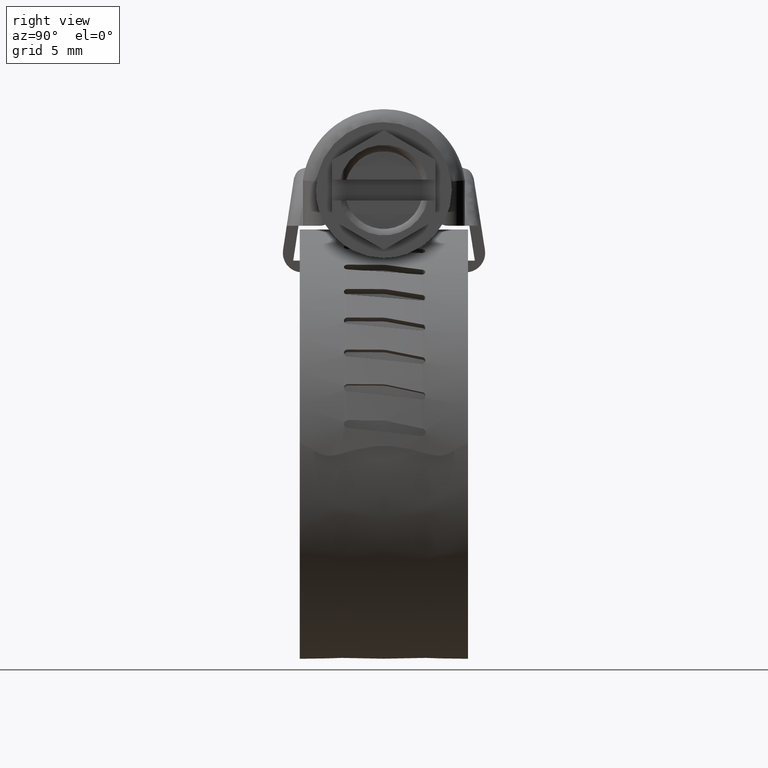
[diagram: clean part render]
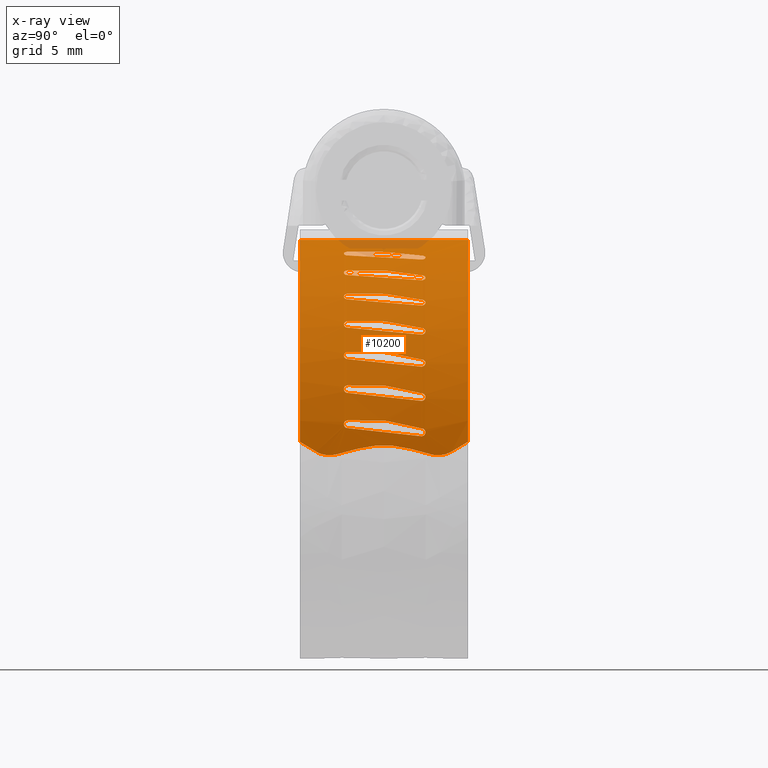
[diagram: x-ray — body ghosted, one internal face saturated and labeled with its STEP entity id]
A machine part, right view, then the same camera in x-ray: the body is ghosted and one INTERNAL B-rep face — a face not visible from any outside direction — is saturated and labeled: STEP entity #10200.
In plain terms, the highlighted face is a freeform B-spline surface patch.
Its self-contained STEP definition (entity closure, byte-faithful):
#7591=CARTESIAN_POINT('',(7.468622013802951,-2.785585000000110,11.060164774460340));
#7592=VERTEX_POINT('',#7591);
#7624=CARTESIAN_POINT('',(8.001785777301370,-2.788650713555960,10.779532431834159));
#7625=VERTEX_POINT('',#7624);
#7631=CARTESIAN_POINT('',(7.735192794443405,-3.087113216014382,10.922941881363000));
#7632=VERTEX_POINT('',#7631);
#7633=CARTESIAN_POINT('',(7.735192794443405,-3.087113216014382,10.922941881363000));
#7634=CARTESIAN_POINT('',(7.774353270318434,-3.087396460004172,10.902330240903360));
#7635=CARTESIAN_POINT('',(7.848236613843380,-3.068984449170313,10.863247654093950));
#7636=CARTESIAN_POINT('',(7.937430647465575,-2.995067784009424,10.815534105407840));
#7637=CARTESIAN_POINT('',(7.990072503995274,-2.896662536323901,10.786810047244920));
#7638=CARTESIAN_POINT('',(8.001668197023564,-2.823057337449750,10.779948423563271));
#7639=CARTESIAN_POINT('',(8.001785777301370,-2.788650713555960,10.779532431834159));
#7640=B_SPLINE_CURVE_WITH_KNOTS('',3,(#7633,#7634,#7635,#7636,#7637,#7638,#7639),.UNSPECIFIED.,.F.,.U.,(4,1,1,1,4),(0.000000074459828,0.132734567175214,0.250719301594225,0.368706799835419,0.471944539498919),.UNSPECIFIED.);
#7641=EDGE_CURVE('',#7632,#7625,#7640,.T.);
#7643=CARTESIAN_POINT('',(7.468622013802951,-2.785585000000110,11.060164774460340));
#7644=CARTESIAN_POINT('',(7.468721886820338,-2.820002962885665,11.060466412822210));
#7645=CARTESIAN_POINT('',(7.480286135821372,-2.893767680608994,11.055138002861280));
#7646=CARTESIAN_POINT('',(7.532909484056900,-2.992798116787530,11.028455610342039));
#7647=CARTESIAN_POINT('',(7.622114220473179,-3.067736762438631,10.982268393178369));
#7648=CARTESIAN_POINT('',(7.696019466352696,-3.086968262830792,10.943561701798050));
#7649=CARTESIAN_POINT('',(7.735192794443405,-3.087113216014382,10.922941881363000));
#7650=B_SPLINE_CURVE_WITH_KNOTS('',3,(#7643,#7644,#7645,#7646,#7647,#7648,#7649),.UNSPECIFIED.,.F.,.U.,(4,1,1,1,4),(0.000000063546443,0.103271005063138,0.221296450684939,0.339319128089686,0.472096309317914),.UNSPECIFIED.);
#7651=EDGE_CURVE('',#7592,#7632,#7650,.T.);
#7661=CARTESIAN_POINT('',(7.480985868132730,-0.091803432220742,11.053934269604540));
#7662=VERTEX_POINT('',#7661);
#7676=CARTESIAN_POINT('',(7.480985868132730,-0.091803432220742,11.053934269604540));
#7677=CARTESIAN_POINT('',(7.468622013802951,-2.785585000000110,11.060164774460340));
#7678=QUASI_UNIFORM_CURVE('',1,(#7676,#7677),.UNSPECIFIED.,.F.,.U.);
#7679=EDGE_CURVE('',#7662,#7592,#7678,.T.);
#7698=CARTESIAN_POINT('',(7.511282089986549,0.217042999999876,11.038612427081800));
#7699=VERTEX_POINT('',#7698);
#7715=CARTESIAN_POINT('',(7.511282089986549,0.217042999999876,11.038612427081800));
#7716=CARTESIAN_POINT('',(7.491606822836358,0.115654460444534,11.048570904177540));
#7717=CARTESIAN_POINT('',(7.481436650518223,0.011953908167259,11.053714308585100));
#7718=CARTESIAN_POINT('',(7.480985868132730,-0.091803432220742,11.053934269604540));
#7719=B_SPLINE_CURVE_WITH_KNOTS('',3,(#7715,#7716,#7717,#7718),.UNSPECIFIED.,.F.,.U.,(4,4),(8.772209E-010,0.311276045532581),.UNSPECIFIED.);
#7720=EDGE_CURVE('',#7699,#7662,#7719,.T.);
#7730=CARTESIAN_POINT('',(8.027360255153381,2.911274713555845,10.765443708118941));
#7731=VERTEX_POINT('',#7730);
#7745=CARTESIAN_POINT('',(8.027360255153381,2.911274713555845,10.765443708118941));
#7746=CARTESIAN_POINT('',(7.511282089986549,0.217042999999876,11.038612427081800));
#7747=QUASI_UNIFORM_CURVE('',1,(#7745,#7746),.UNSPECIFIED.,.F.,.U.);
#7748=EDGE_CURVE('',#7731,#7699,#7747,.T.);
#7771=CARTESIAN_POINT('',(8.542129065854130,2.845777941562945,10.469144120797459));
#7772=VERTEX_POINT('',#7771);
#7805=CARTESIAN_POINT('',(8.317620932572568,3.207944838679686,10.601387872002190));
#7806=VERTEX_POINT('',#7805);
#7807=CARTESIAN_POINT('',(8.317620932572568,3.207944838679686,10.601387872002190));
#7808=CARTESIAN_POINT('',(8.270229080222686,3.214143856292536,10.628711970510119));
#7809=CARTESIAN_POINT('',(8.186498397308515,3.197847766791185,10.676719093617120));
#7810=CARTESIAN_POINT('',(8.091125316499989,3.116972035816493,10.730787655543960));
#7811=CARTESIAN_POINT('',(8.039316598004456,3.018605179446025,10.759622733856711));
#7812=CARTESIAN_POINT('',(8.027674611618791,2.945335268520543,10.765598342568060));
#7813=CARTESIAN_POINT('',(8.027360255153381,2.911274713555845,10.765443708118941));
#7814=B_SPLINE_CURVE_WITH_KNOTS('',3,(#7807,#7808,#7809,#7810,#7811,#7812,#7813),.UNSPECIFIED.,.F.,.U.,(4,1,1,1,4),(0.000000124010099,0.165072555756270,0.282968726625985,0.400884384446675,0.503069047168199),.UNSPECIFIED.);
#7815=EDGE_CURVE('',#7806,#7731,#7814,.T.);
#7817=CARTESIAN_POINT('',(8.542129065854130,2.845777941562945,10.469144120797459));
#7818=CARTESIAN_POINT('',(8.548534489233461,2.879048067099116,10.465792573874170));
#7819=CARTESIAN_POINT('',(8.551629044405456,2.953379556889647,10.464736544201360));
#7820=CARTESIAN_POINT('',(8.522679584641784,3.054645729902206,10.482316330204270));
#7821=CARTESIAN_POINT('',(8.471153869886344,3.129085547290300,10.512583019996180));
#7822=CARTESIAN_POINT('',(8.404368984862444,3.184267705413005,10.551413837153239));
#7823=CARTESIAN_POINT('',(8.351485946917574,3.203664712352680,10.581926805033580));
#7824=CARTESIAN_POINT('',(8.317620932572568,3.207944838679686,10.601387872002190));
#7825=B_SPLINE_CURVE_WITH_KNOTS('',3,(#7817,#7818,#7819,#7820,#7821,#7822,#7823,#7824),.UNSPECIFIED.,.F.,.U.,(4,1,1,1,1,4),(0.000000130051108,0.102140529475349,0.220005126259766,0.314274098381862,0.384995646246566,0.502851150139752),.UNSPECIFIED.);
#7826=EDGE_CURVE('',#7772,#7806,#7825,.T.);
#7843=CARTESIAN_POINT('',(8.001785777301370,-2.788650713555960,10.779532431834159));
#7844=CARTESIAN_POINT('',(8.542129065854130,2.845777941562945,10.469144120797459));
#7845=QUASI_UNIFORM_CURVE('',1,(#7843,#7844),.UNSPECIFIED.,.F.,.U.);
#7846=EDGE_CURVE('',#7625,#7772,#7845,.T.);
#7869=CARTESIAN_POINT('',(9.814867831717091,-2.785585000000110,9.624017516627580));
#7870=VERTEX_POINT('',#7869);
#7902=CARTESIAN_POINT('',(10.294401878639439,-2.788650713555960,9.259236475072759));
#7903=VERTEX_POINT('',#7902);
#7909=CARTESIAN_POINT('',(10.055134444478270,-3.087113216014382,9.444679683827276));
#7910=VERTEX_POINT('',#7909);
#7911=CARTESIAN_POINT('',(10.055134444478270,-3.087113216014382,9.444679683827276));
#7912=CARTESIAN_POINT('',(10.090356047638590,-3.087396408573451,9.417887306580829));
#7913=CARTESIAN_POINT('',(10.156776181026361,-3.068984401351506,9.367146032027156));
#7914=CARTESIAN_POINT('',(10.236869380408470,-2.995067865389812,9.305367552133705));
#7915=CARTESIAN_POINT('',(10.284054136413831,-2.896662153491254,9.268344682251856));
#7916=CARTESIAN_POINT('',(10.294351879391360,-2.823057878220150,9.259668220697469));
#7917=CARTESIAN_POINT('',(10.294401878639439,-2.788650713555960,9.259236475072759));
#7918=B_SPLINE_CURVE_WITH_KNOTS('',3,(#7911,#7912,#7913,#7914,#7915,#7916,#7917),.UNSPECIFIED.,.F.,.U.,(4,1,1,1,4),(0.000000074459962,0.132734567175297,0.250719301594242,0.368706799835400,0.471944539498893),.UNSPECIFIED.);
#7919=EDGE_CURVE('',#7910,#7903,#7918,.T.);
#7921=CARTESIAN_POINT('',(9.814867831717091,-2.785585000000110,9.624017516627580));
#7922=CARTESIAN_POINT('',(9.815018751085024,-2.820001712146046,9.624296518222140));
#7923=CARTESIAN_POINT('',(9.825538587777743,-2.893768733402434,9.617137408321177));
#7924=CARTESIAN_POINT('',(9.873042509484881,-2.992795173624685,9.582130877273606));
#7925=CARTESIAN_POINT('',(9.953396413594794,-3.067744003710198,9.521857490308218));
#7926=CARTESIAN_POINT('',(10.019902931851901,-3.086962522800786,9.471481106263269));
#7927=CARTESIAN_POINT('',(10.055134444478270,-3.087113216014382,9.444679683827276));
#7928=B_SPLINE_CURVE_WITH_KNOTS('',3,(#7921,#7922,#7923,#7924,#7925,#7926,#7927),.UNSPECIFIED.,.F.,.U.,(4,1,1,1,4),(0.000000063546742,0.103271005063352,0.221296450685033,0.339319128089693,0.472096309317883),.UNSPECIFIED.);
#7929=EDGE_CURVE('',#7870,#7910,#7928,.T.);
#7939=CARTESIAN_POINT('',(9.826033793312041,-0.091803432220742,9.615831834841490));
#7940=VERTEX_POINT('',#7939);
#7954=CARTESIAN_POINT('',(9.826033793312041,-0.091803432220742,9.615831834841490));
#7955=CARTESIAN_POINT('',(9.814867831717091,-2.785585000000110,9.624017516627580));
#7956=QUASI_UNIFORM_CURVE('',1,(#7954,#7955),.UNSPECIFIED.,.F.,.U.);
#7957=EDGE_CURVE('',#7940,#7870,#7956,.T.);
#7976=CARTESIAN_POINT('',(9.853385687281909,0.217042999999876,9.595719803288880));
#7977=VERTEX_POINT('',#7976);
#7993=CARTESIAN_POINT('',(9.853385687281909,0.217042999999876,9.595719803288880));
#7994=CARTESIAN_POINT('',(9.835623877388079,0.115654460444517,9.608789061599453));
#7995=CARTESIAN_POINT('',(9.826442089448920,0.011953908167257,9.615540489901752));
#7996=CARTESIAN_POINT('',(9.826033793312041,-0.091803432220742,9.615831834841490));
#7997=B_SPLINE_CURVE_WITH_KNOTS('',3,(#7993,#7994,#7995,#7996),.UNSPECIFIED.,.F.,.U.,(4,4),(8.772176E-010,0.311276045532575),.UNSPECIFIED.);
#7998=EDGE_CURVE('',#7977,#7940,#7997,.T.);
#8008=CARTESIAN_POINT('',(10.317300307792539,2.911274713555845,9.241119963387281));
#8009=VERTEX_POINT('',#8008);
#8023=CARTESIAN_POINT('',(10.317300307792539,2.911274713555845,9.241119963387281));
#8024=CARTESIAN_POINT('',(9.853385687281909,0.217042999999876,9.595719803288880));
#8025=QUASI_UNIFORM_CURVE('',1,(#8023,#8024),.UNSPECIFIED.,.F.,.U.);
#8026=EDGE_CURVE('',#8009,#7977,#8025,.T.);
#8049=CARTESIAN_POINT('',(10.776105836402520,2.845777941562945,8.863922586893208));
#8050=VERTEX_POINT('',#8049);
#8083=CARTESIAN_POINT('',(10.576503211645189,3.207944838679690,9.031407224494116));
#8084=VERTEX_POINT('',#8083);
#8085=CARTESIAN_POINT('',(10.576503211645189,3.207944838679690,9.031407224494116));
#8086=CARTESIAN_POINT('',(10.542320657803741,3.212911707508535,9.059550431548608));
#8087=CARTESIAN_POINT('',(10.478373266395110,3.203468304315562,9.111992622900612));
#8088=CARTESIAN_POINT('',(10.406541638043571,3.150719814026972,9.170434888133991));
#8089=CARTESIAN_POINT('',(10.361663802826801,3.089040790231948,9.206630129945857));
#8090=CARTESIAN_POINT('',(10.328025888887380,3.013346812597133,9.233434492091332));
#8091=CARTESIAN_POINT('',(10.317669241100640,2.950582072743709,9.241251153408586));
#8092=CARTESIAN_POINT('',(10.317300307792539,2.911274713555845,9.241119963387281));
#8093=B_SPLINE_CURVE_WITH_KNOTS('',3,(#8085,#8086,#8087,#8088,#8089,#8090,#8091,#8092),.UNSPECIFIED.,.F.,.U.,(4,1,1,1,1,4),(0.000000124009444,0.133628008425974,0.243691353250245,0.314410281398749,0.385162470200487,0.503069047168065),.UNSPECIFIED.);
#8094=EDGE_CURVE('',#8084,#8009,#8093,.T.);
#8096=CARTESIAN_POINT('',(10.776105836402520,2.845777941562945,8.863922586893208));
#8097=CARTESIAN_POINT('',(10.785502480472649,2.899531688243546,8.856805550709064));
#8098=CARTESIAN_POINT('',(10.781561099091320,2.989011402281535,8.861005267666160));
#8099=CARTESIAN_POINT('',(10.738399133191010,3.094112885317450,8.897512458391574));
#8100=CARTESIAN_POINT('',(10.675162295095340,3.173019145867182,8.950185403184419));
#8101=CARTESIAN_POINT('',(10.614757667016081,3.202570674243996,9.000002512693451));
#8102=CARTESIAN_POINT('',(10.576503211645189,3.207944838679690,9.031407224494116));
#8103=B_SPLINE_CURVE_WITH_KNOTS('',3,(#8096,#8097,#8098,#8099,#8100,#8101,#8102),.UNSPECIFIED.,.F.,.U.,(4,1,1,1,4),(0.000000130052200,0.165001064650802,0.259265494162308,0.353566039518371,0.502851150139798),.UNSPECIFIED.);
#8104=EDGE_CURVE('',#8050,#8084,#8103,.T.);
#8121=CARTESIAN_POINT('',(10.294401878639439,-2.788650713555960,9.259236475072759));
#8122=CARTESIAN_POINT('',(10.776105836402520,2.845777941562945,8.863922586893208));
#8123=QUASI_UNIFORM_CURVE('',1,(#8121,#8122),.UNSPECIFIED.,.F.,.U.);
#8124=EDGE_CURVE('',#7903,#8050,#8123,.T.);
#8147=CARTESIAN_POINT('',(11.891903633023921,-2.785585000000110,7.820323899532521));
#8148=VERTEX_POINT('',#8147);
#8180=CARTESIAN_POINT('',(12.304654921378420,-2.788650713555960,7.381399664159901));
#8181=VERTEX_POINT('',#8180);
#8187=CARTESIAN_POINT('',(12.099275853777300,-3.087113216014381,7.603790148025491));
#8188=VERTEX_POINT('',#8187);
#8189=CARTESIAN_POINT('',(12.099275853777300,-3.087113216014381,7.603790148025491));
#8190=CARTESIAN_POINT('',(12.129591043202741,-3.087391018535419,7.571553338022272));
#8191=CARTESIAN_POINT('',(12.186727871181830,-3.068991700841431,7.510543153430394));
#8192=CARTESIAN_POINT('',(12.255526371322221,-2.995065277526051,7.436392477284415));
#8193=CARTESIAN_POINT('',(12.295949376747020,-2.896662368285155,7.392094024683133));
#8194=CARTESIAN_POINT('',(12.304679121874360,-2.823057512771116,7.381831337354758));
#8195=CARTESIAN_POINT('',(12.304654921378420,-2.788650713555960,7.381399664159901));
#8196=B_SPLINE_CURVE_WITH_KNOTS('',3,(#8189,#8190,#8191,#8192,#8193,#8194,#8195),.UNSPECIFIED.,.F.,.U.,(4,1,1,1,4),(0.000000074460018,0.132734567175000,0.250719301593713,0.368706799834648,0.471944539497931),.UNSPECIFIED.);
#8197=EDGE_CURVE('',#8188,#8181,#8196,.T.);
#8199=CARTESIAN_POINT('',(11.891903633023921,-2.785585000000110,7.820323899532521));
#8200=CARTESIAN_POINT('',(11.892096343458521,-2.820003216085822,7.820576512551944));
#8201=CARTESIAN_POINT('',(11.901295534163300,-2.893767113682871,7.811773717361314));
#8202=CARTESIAN_POINT('',(11.942365248613759,-2.992798323621502,7.769412226084693));
#8203=CARTESIAN_POINT('',(12.011672690125080,-3.067736553386854,7.696699347249320));
#8204=CARTESIAN_POINT('',(12.068950030187690,-3.086968490178899,7.636040025334684));
#8205=CARTESIAN_POINT('',(12.099275853777300,-3.087113216014381,7.603790148025491));
#8206=B_SPLINE_CURVE_WITH_KNOTS('',3,(#8199,#8200,#8201,#8202,#8203,#8204,#8205),.UNSPECIFIED.,.F.,.U.,(4,1,1,1,4),(0.000000063546727,0.103271005063570,0.221296450685544,0.339319128090464,0.472096309318969),.UNSPECIFIED.);
#8207=EDGE_CURVE('',#8148,#8188,#8206,.T.);
#8217=CARTESIAN_POINT('',(11.901565432991701,-0.091803432220742,7.810407564220130));
#8218=VERTEX_POINT('',#8217);
#8232=CARTESIAN_POINT('',(11.901565432991701,-0.091803432220742,7.810407564220130));
#8233=CARTESIAN_POINT('',(11.891903633023921,-2.785585000000110,7.820323899532521));
#8234=QUASI_UNIFORM_CURVE('',1,(#8232,#8233),.UNSPECIFIED.,.F.,.U.);
#8235=EDGE_CURVE('',#8218,#8148,#8234,.T.);
#8254=CARTESIAN_POINT('',(11.925222769531800,0.217042999999876,7.786056992466319));
#8255=VERTEX_POINT('',#8254);
#8271=CARTESIAN_POINT('',(11.925222769531800,0.217042999999876,7.786056992466319));
#8272=CARTESIAN_POINT('',(11.909863394949131,0.115654324983967,7.801876710003272));
#8273=CARTESIAN_POINT('',(11.901918273167871,0.011954335262606,7.810054651563585));
#8274=CARTESIAN_POINT('',(11.901565432991701,-0.091803432220742,7.810407564220130));
#8275=B_SPLINE_CURVE_WITH_KNOTS('',3,(#8271,#8272,#8273,#8274),.UNSPECIFIED.,.F.,.U.,(4,4),(8.772185E-010,0.311276045532583),.UNSPECIFIED.);
#8276=EDGE_CURVE('',#8255,#8218,#8275,.T.);
#8286=CARTESIAN_POINT('',(12.324249225470041,2.911274713555845,7.359752278625180));
#8287=VERTEX_POINT('',#8286);
#8301=CARTESIAN_POINT('',(12.324249225470041,2.911274713555845,7.359752278625180));
#8302=CARTESIAN_POINT('',(11.925222769531800,0.217042999999876,7.786056992466319));
#8303=QUASI_UNIFORM_CURVE('',1,(#8301,#8302),.UNSPECIFIED.,.F.,.U.);
#8304=EDGE_CURVE('',#8287,#8255,#8303,.T.);
#8327=CARTESIAN_POINT('',(12.714506988316080,2.845777941562945,6.912003183198411));
#8328=VERTEX_POINT('',#8327);
#8361=CARTESIAN_POINT('',(12.545284731943861,3.207944838679689,7.110134805082167));
#8362=VERTEX_POINT('',#8361);
#8363=CARTESIAN_POINT('',(12.545284731943861,3.207944838679689,7.110134805082167));
#8364=CARTESIAN_POINT('',(12.523058344014110,3.211709435185443,7.135671689118388));
#8365=CARTESIAN_POINT('',(12.481181948469260,3.207856791468811,7.183643158830921));
#8366=CARTESIAN_POINT('',(12.427533955053120,3.175941049285319,7.244749103309027));
#8367=CARTESIAN_POINT('',(12.376905570505880,3.119591611795700,7.302074937112816));
#8368=CARTESIAN_POINT('',(12.336140666639320,3.031681925421041,7.347679916368350));
#8369=CARTESIAN_POINT('',(12.324638611798710,2.950577137417522,7.359816287215274));
#8370=CARTESIAN_POINT('',(12.324249225470041,2.911274713555845,7.359752278625180));
#8371=B_SPLINE_CURVE_WITH_KNOTS('',3,(#8363,#8364,#8365,#8366,#8367,#8368,#8369,#8370),.UNSPECIFIED.,.F.,.U.,(4,1,1,1,1,4),(0.000000124009969,0.102184780170149,0.188658914573760,0.259377821424147,0.385162470201066,0.503069047168741),.UNSPECIFIED.);
#8372=EDGE_CURVE('',#8362,#8287,#8371,.T.);
#8374=CARTESIAN_POINT('',(12.714506988316080,2.845777941562945,6.912003183198411));
#8375=CARTESIAN_POINT('',(12.719472259354790,2.879047980909335,6.906748851863870));
#8376=CARTESIAN_POINT('',(12.722054378208920,2.953379747167021,6.904742906448214));
#8377=CARTESIAN_POINT('',(12.700405584470930,3.054645753622000,6.930789895292540));
#8378=CARTESIAN_POINT('',(12.661540989520260,3.129085492061035,6.976182680516589));
#8379=CARTESIAN_POINT('',(12.611036566472730,3.184267828236055,7.034641146344853));
#8380=CARTESIAN_POINT('',(12.570968970429689,3.203664611836272,7.080708470854696));
#8381=CARTESIAN_POINT('',(12.545284731943861,3.207944838679689,7.110134805082167));
#8382=B_SPLINE_CURVE_WITH_KNOTS('',3,(#8374,#8375,#8376,#8377,#8378,#8379,#8380,#8381),.UNSPECIFIED.,.F.,.U.,(4,1,1,1,1,4),(0.000000130051733,0.102140529475807,0.220005126259979,0.314274098381887,0.384995646246470,0.502851150139443),.UNSPECIFIED.);
#8383=EDGE_CURVE('',#8328,#8362,#8382,.T.);
#8400=CARTESIAN_POINT('',(12.304654921378420,-2.788650713555960,7.381399664159901));
#8401=CARTESIAN_POINT('',(12.714506988316080,2.845777941562945,6.912003183198411));
#8402=QUASI_UNIFORM_CURVE('',1,(#8400,#8401),.UNSPECIFIED.,.F.,.U.);
#8403=EDGE_CURVE('',#8181,#8328,#8402,.T.);
#8426=CARTESIAN_POINT('',(13.642758824522661,-2.785585000000110,5.698557069114550));
#8427=VERTEX_POINT('',#8426);
#8459=CARTESIAN_POINT('',(13.977406083040080,-2.788650713555960,5.197528803642011));
#8460=VERTEX_POINT('',#8459);
#8466=CARTESIAN_POINT('',(13.811548682735671,-3.087113216014382,5.450766659199699));
#8467=VERTEX_POINT('',#8466);
#8468=CARTESIAN_POINT('',(13.811548682735671,-3.087113216014382,5.450766659199699));
#8469=CARTESIAN_POINT('',(13.836128736833951,-3.087396486025695,5.413966759785618));
#8470=CARTESIAN_POINT('',(13.882409752608091,-3.068984188446306,5.344366721782385));
#8471=CARTESIAN_POINT('',(13.938028221272750,-2.995068125341673,5.259875289529758));
#8472=CARTESIAN_POINT('',(13.970584868238999,-2.896661640297487,5.209513524549631));
#8473=CARTESIAN_POINT('',(13.977501202282550,-2.823058235201545,5.197950568299683));
#8474=CARTESIAN_POINT('',(13.977406083040080,-2.788650713555960,5.197528803642011));
#8475=B_SPLINE_CURVE_WITH_KNOTS('',3,(#8468,#8469,#8470,#8471,#8472,#8473,#8474),.UNSPECIFIED.,.F.,.U.,(4,1,1,1,4),(0.000000074459651,0.132734567175053,0.250719301594089,0.368706799835286,0.471944539498797),.UNSPECIFIED.);
#8476=EDGE_CURVE('',#8467,#8460,#8475,.T.);
#8478=CARTESIAN_POINT('',(13.642758824522661,-2.785585000000110,5.698557069114550));
#8479=CARTESIAN_POINT('',(13.642992242590060,-2.820004522736339,5.698771951098320));
#8480=CARTESIAN_POINT('',(13.650608421550000,-2.893765550920120,5.688577474068921));
#8481=CARTESIAN_POINT('',(13.684126772210510,-2.992799278361645,5.640013219822772));
#8482=CARTESIAN_POINT('',(13.740480859881510,-3.067736210559548,5.556861137233998));
#8483=CARTESIAN_POINT('',(13.786961629903249,-3.086968516840080,5.487579296203786));
#8484=CARTESIAN_POINT('',(13.811548682735671,-3.087113216014382,5.450766659199699));
#8485=B_SPLINE_CURVE_WITH_KNOTS('',3,(#8478,#8479,#8480,#8481,#8482,#8483,#8484),.UNSPECIFIED.,.F.,.U.,(4,1,1,1,4),(0.000000063546478,0.103271005063194,0.221296450685002,0.339319128089752,0.472096309318036),.UNSPECIFIED.);
#8486=EDGE_CURVE('',#8427,#8467,#8485,.T.);
#8496=CARTESIAN_POINT('',(13.650651451313500,-0.091803432220742,5.687182073422890));
#8497=VERTEX_POINT('',#8496);
#8511=CARTESIAN_POINT('',(13.650651451313500,-0.091803432220742,5.687182073422890));
#8512=CARTESIAN_POINT('',(13.642758824522661,-2.785585000000110,5.698557069114550));
#8513=QUASI_UNIFORM_CURVE('',1,(#8511,#8512),.UNSPECIFIED.,.F.,.U.);
#8514=EDGE_CURVE('',#8497,#8427,#8513,.T.);
#8533=CARTESIAN_POINT('',(13.669965338144420,0.217042999999876,5.659260868355971));
#8534=VERTEX_POINT('',#8533);
#8550=CARTESIAN_POINT('',(13.669965338144420,0.217042999999876,5.659260868355971));
#8551=CARTESIAN_POINT('',(13.657427865906110,0.115654180786497,5.677398292227633));
#8552=CARTESIAN_POINT('',(13.650940903574011,0.011954414058411,5.686776201863270));
#8553=CARTESIAN_POINT('',(13.650651451313500,-0.091803432220742,5.687182073422890));
#8554=B_SPLINE_CURVE_WITH_KNOTS('',3,(#8550,#8551,#8552,#8553),.UNSPECIFIED.,.F.,.U.,(4,4),(8.772171E-010,0.311276045532566),.UNSPECIFIED.);
#8555=EDGE_CURVE('',#8534,#8497,#8554,.T.);
#8565=CARTESIAN_POINT('',(13.993158813882401,2.911274713555845,5.172944305999520));
#8566=VERTEX_POINT('',#8565);
#8580=CARTESIAN_POINT('',(13.993158813882401,2.911274713555845,5.172944305999520));
#8581=CARTESIAN_POINT('',(13.669965338144420,0.217042999999876,5.659260868355971));
#8582=QUASI_UNIFORM_CURVE('',1,(#8580,#8581),.UNSPECIFIED.,.F.,.U.);
#8583=EDGE_CURVE('',#8566,#8534,#8582,.T.);
#8606=CARTESIAN_POINT('',(14.304164510038859,2.845777941562945,4.666924710652310));
#8607=VERTEX_POINT('',#8606);
#8640=CARTESIAN_POINT('',(14.169964184956079,3.207944838679684,4.890268804798697));
#8641=VERTEX_POINT('',#8640);
#8642=CARTESIAN_POINT('',(14.169964184956079,3.207944838679684,4.890268804798697));
#8643=CARTESIAN_POINT('',(14.149531827402480,3.212308852657432,4.923565848662447));
#8644=CARTESIAN_POINT('',(14.116045805332210,3.206724469992966,4.977927866702896));
#8645=CARTESIAN_POINT('',(14.073800598459369,3.172802297617736,5.046071711394276));
#8646=CARTESIAN_POINT('',(14.035572210579341,3.119594747221087,5.107369321483170));
#8647=CARTESIAN_POINT('',(14.002895078156570,3.031680666383791,5.159074149005939));
#8648=CARTESIAN_POINT('',(13.993553369518789,2.950577550098990,5.172943265563351));
#8649=CARTESIAN_POINT('',(13.993158813882401,2.911274713555845,5.172944305999520));
#8650=B_SPLINE_CURVE_WITH_KNOTS('',3,(#8642,#8643,#8644,#8645,#8646,#8647,#8648,#8649),.UNSPECIFIED.,.F.,.U.,(4,1,1,1,1,4),(0.000000124009626,0.117906696362418,0.188658914573188,0.259377821423497,0.385162470200334,0.503069047167925),.UNSPECIFIED.);
#8651=EDGE_CURVE('',#8641,#8566,#8650,.T.);
#8653=CARTESIAN_POINT('',(14.304164510038859,2.845777941562945,4.666924710652310));
#8654=CARTESIAN_POINT('',(14.308824098054830,2.884167455822080,4.659983981442011));
#8655=CARTESIAN_POINT('',(14.310088814968450,2.964242504145197,4.659212685364672));
#8656=CARTESIAN_POINT('',(14.288776623251531,3.071052548237153,4.695469055530281));
#8657=CARTESIAN_POINT('',(14.243298715782650,3.167105749416713,4.770729951440648));
#8658=CARTESIAN_POINT('',(14.198650285896189,3.202038801835444,4.843669890708354));
#8659=CARTESIAN_POINT('',(14.169964184956079,3.207944838679684,4.890268804798697));
#8660=B_SPLINE_CURVE_WITH_KNOTS('',3,(#8653,#8654,#8655,#8656,#8657,#8658,#8659),.UNSPECIFIED.,.F.,.U.,(4,1,1,1,4),(0.000000130051028,0.117855633938549,0.235716658949681,0.337850215525736,0.502851150139892),.UNSPECIFIED.);
#8661=EDGE_CURVE('',#8607,#8641,#8660,.T.);
#8678=CARTESIAN_POINT('',(13.977406083040080,-2.788650713555960,5.197528803642011));
#8679=CARTESIAN_POINT('',(14.304164510038859,2.845777941562945,4.666924710652310));
#8680=QUASI_UNIFORM_CURVE('',1,(#8678,#8679),.UNSPECIFIED.,.F.,.U.);
#8681=EDGE_CURVE('',#8460,#8607,#8680,.T.);
#8704=CARTESIAN_POINT('',(15.019409554719450,-2.785585000000110,3.316914536888360));
#8705=VERTEX_POINT('',#8704);
#8737=CARTESIAN_POINT('',(15.266773811704450,-2.788650713555960,2.767524843863550));
#8738=VERTEX_POINT('',#8737);
#8744=CARTESIAN_POINT('',(15.144987347649080,-3.087113216014382,3.044664061397978));
#8745=VERTEX_POINT('',#8744);
#8746=CARTESIAN_POINT('',(15.144987347649080,-3.087113216014382,3.044664061397978));
#8747=CARTESIAN_POINT('',(15.163156132648400,-3.087390395178805,3.004312798399869));
#8748=CARTESIAN_POINT('',(15.197316613740890,-3.068992328531569,2.928025693245714));
#8749=CARTESIAN_POINT('',(15.238224844907270,-2.995063766525232,2.835518268943691));
#8750=CARTESIAN_POINT('',(15.262026208048651,-2.896665298794157,2.780466636944399));
#8751=CARTESIAN_POINT('',(15.266935795837300,-2.823055092619956,2.767928258071340));
#8752=CARTESIAN_POINT('',(15.266773811704450,-2.788650713555960,2.767524843863550));
#8753=B_SPLINE_CURVE_WITH_KNOTS('',3,(#8746,#8747,#8748,#8749,#8750,#8751,#8752),.UNSPECIFIED.,.F.,.U.,(4,1,1,1,4),(0.000000074459737,0.132734567174903,0.250719301593704,0.368706799834685,0.471944539497999),.UNSPECIFIED.);
#8754=EDGE_CURVE('',#8745,#8738,#8753,.T.);
#8756=CARTESIAN_POINT('',(15.019409554719450,-2.785585000000110,3.316914536888360));
#8757=CARTESIAN_POINT('',(15.019675295561189,-2.820004284541635,3.317087812228189));
#8758=CARTESIAN_POINT('',(15.025504267808870,-2.893766246661270,3.305776537807565));
#8759=CARTESIAN_POINT('',(15.050547982868540,-2.992796423618912,3.252345083898042));
#8760=CARTESIAN_POINT('',(15.092403981102720,-3.067743743131444,3.161035114961114));
#8761=CARTESIAN_POINT('',(15.126814037136260,-3.086962901641043,3.085028172053042));
#8762=CARTESIAN_POINT('',(15.144987347649080,-3.087113216014382,3.044664061397978));
#8763=B_SPLINE_CURVE_WITH_KNOTS('',3,(#8756,#8757,#8758,#8759,#8760,#8761,#8762),.UNSPECIFIED.,.F.,.U.,(4,1,1,1,4),(0.000000063546467,0.103271005063365,0.221296450685412,0.339319128090381,0.472096309318844),.UNSPECIFIED.);
#8764=EDGE_CURVE('',#8705,#8745,#8763,.T.);
#8774=CARTESIAN_POINT('',(15.025316523075951,-0.091803432220742,3.304392883264340));
#8775=VERTEX_POINT('',#8774);
#8789=CARTESIAN_POINT('',(15.025316523075951,-0.091803432220742,3.304392883264340));
#8790=CARTESIAN_POINT('',(15.019409554719450,-2.785585000000110,3.316914536888360));
#8791=QUASI_UNIFORM_CURVE('',1,(#8789,#8790),.UNSPECIFIED.,.F.,.U.);
#8792=EDGE_CURVE('',#8775,#8705,#8791,.T.);
#8811=CARTESIAN_POINT('',(15.039757203518000,0.217042999999876,3.273666889947925));
#8812=VERTEX_POINT('',#8811);
#8828=CARTESIAN_POINT('',(15.039757203518000,0.217042999999876,3.273666889947925));
#8829=CARTESIAN_POINT('',(15.030383932124369,0.115654460444532,3.293627580989984));
#8830=CARTESIAN_POINT('',(15.025536322917439,0.011953908167261,3.303942022267030));
#8831=CARTESIAN_POINT('',(15.025316523075951,-0.091803432220742,3.304392883264340));
#8832=B_SPLINE_CURVE_WITH_KNOTS('',3,(#8828,#8829,#8830,#8831),.UNSPECIFIED.,.F.,.U.,(4,4),(8.772117E-010,0.311276045532578),.UNSPECIFIED.);
#8833=EDGE_CURVE('',#8812,#8775,#8832,.T.);
#8843=CARTESIAN_POINT('',(15.278252890841600,2.911274713555845,2.740677557306280));
#8844=VERTEX_POINT('',#8843);
#8858=CARTESIAN_POINT('',(15.278252890841600,2.911274713555845,2.740677557306280));
#8859=CARTESIAN_POINT('',(15.039757203518000,0.217042999999876,3.273666889947925));
#8860=QUASI_UNIFORM_CURVE('',1,(#8858,#8859),.UNSPECIFIED.,.F.,.U.);
#8861=EDGE_CURVE('',#8844,#8812,#8860,.T.);
#8884=CARTESIAN_POINT('',(15.501476008226350,2.845777941562945,2.190266970760025));
#8885=VERTEX_POINT('',#8884);
#8918=CARTESIAN_POINT('',(15.405978567897890,3.207944838679684,2.432697477364792));
#8919=VERTEX_POINT('',#8918);
#8920=CARTESIAN_POINT('',(15.405978567897890,3.207944838679684,2.432697477364792));
#8921=CARTESIAN_POINT('',(15.393277792859990,3.211705780142217,2.464077493068560));
#8922=CARTESIAN_POINT('',(15.365300563807800,3.207237263679639,2.532911767468466));
#8923=CARTESIAN_POINT('',(15.328369387277681,3.163088699660563,2.622907670104607));
#8924=CARTESIAN_POINT('',(15.302306092226701,3.095929132780191,2.685602767450443));
#8925=CARTESIAN_POINT('',(15.284012253411820,3.013345253659866,2.728803798675106));
#8926=CARTESIAN_POINT('',(15.278639523861431,2.950582337335174,2.740617284616984));
#8927=CARTESIAN_POINT('',(15.278252890841600,2.911274713555845,2.740677557306280));
#8928=B_SPLINE_CURVE_WITH_KNOTS('',3,(#8920,#8921,#8922,#8923,#8924,#8925,#8926,#8927),.UNSPECIFIED.,.F.,.U.,(4,1,1,1,1,4),(0.000000124010115,0.102184780170317,0.220100487002507,0.314410281399417,0.385162470201222,0.503069047168910),.UNSPECIFIED.);
#8929=EDGE_CURVE('',#8919,#8844,#8928,.T.);
#8931=CARTESIAN_POINT('',(15.501476008226350,2.845777941562945,2.190266970760025));
#8932=CARTESIAN_POINT('',(15.504459084872069,2.879047366752400,2.183684898763686));
#8933=CARTESIAN_POINT('',(15.506251680965899,2.953381854338429,2.180937271221763));
#8934=CARTESIAN_POINT('',(15.494256884795361,3.054643100415639,2.212626806578432));
#8935=CARTESIAN_POINT('',(15.472291089203960,3.129086449238404,2.268192428995187));
#8936=CARTESIAN_POINT('',(15.443569980233841,3.184267554583884,2.339909712218402));
#8937=CARTESIAN_POINT('',(15.420683094351920,3.203664761476518,2.396512661445158));
#8938=CARTESIAN_POINT('',(15.405978567897890,3.207944838679684,2.432697477364792));
#8939=B_SPLINE_CURVE_WITH_KNOTS('',3,(#8931,#8932,#8933,#8934,#8935,#8936,#8937,#8938),.UNSPECIFIED.,.F.,.U.,(4,1,1,1,1,4),(0.000000130052259,0.102140529476145,0.220005126260143,0.314274098381931,0.384995646246423,0.502851150139350),.UNSPECIFIED.);
#8940=EDGE_CURVE('',#8885,#8919,#8939,.T.);
#8957=CARTESIAN_POINT('',(15.266773811704450,-2.788650713555960,2.767524843863550));
#8958=CARTESIAN_POINT('',(15.501476008226350,2.845777941562945,2.190266970760025));
#8959=QUASI_UNIFORM_CURVE('',1,(#8957,#8958),.UNSPECIFIED.,.F.,.U.);
#8960=EDGE_CURVE('',#8738,#8885,#8959,.T.);
#8983=CARTESIAN_POINT('',(15.984095950298251,-2.785585000000110,0.740721892219698));
#8984=VERTEX_POINT('',#8983);
#9016=CARTESIAN_POINT('',(16.137392301779151,-2.788650713555960,0.158039869965466));
#9017=VERTEX_POINT('',#9016);
#9023=CARTESIAN_POINT('',(16.063017230163432,-3.087113216014381,0.451478854159932));
#9024=VERTEX_POINT('',#9023);
#9025=CARTESIAN_POINT('',(16.063017230163432,-3.087113216014381,0.451478854159932));
#9026=CARTESIAN_POINT('',(16.074277213321981,-3.087396455689088,0.408681530944263));
#9027=CARTESIAN_POINT('',(16.095377341250849,-3.068984503406267,0.327805319193968));
#9028=CARTESIAN_POINT('',(16.120457751773252,-2.995067289859380,0.229810084730693));
#9029=CARTESIAN_POINT('',(16.134844675521300,-2.896663205876305,0.171592033173594));
#9030=CARTESIAN_POINT('',(16.137619473966161,-2.823056867132462,0.158407935913505));
#9031=CARTESIAN_POINT('',(16.137392301779151,-2.788650713555960,0.158039869965466));
#9032=B_SPLINE_CURVE_WITH_KNOTS('',3,(#9025,#9026,#9027,#9028,#9029,#9030,#9031),.UNSPECIFIED.,.F.,.U.,(4,1,1,1,4),(0.000000074459939,0.132734567175131,0.250719301593970,0.368706799834982,0.471944539498353),.UNSPECIFIED.);
#9033=EDGE_CURVE('',#9024,#9017,#9032,.T.);
#9035=CARTESIAN_POINT('',(15.984095950298251,-2.785585000000110,0.740721892219698));
#9036=CARTESIAN_POINT('',(15.984385788115960,-2.820004885468837,0.740852211767092));
#9037=CARTESIAN_POINT('',(15.988270006909859,-2.893765282217668,0.728726019710685));
#9038=CARTESIAN_POINT('',(16.004149562356279,-2.992797020015735,0.671901473126031));
#9039=CARTESIAN_POINT('',(16.030362254328839,-3.067743169417915,0.574930870900532));
#9040=CARTESIAN_POINT('',(16.051754802264171,-3.086962616767515,0.494290189412773));
#9041=CARTESIAN_POINT('',(16.063017230163432,-3.087113216014381,0.451478854159932));
#9042=B_SPLINE_CURVE_WITH_KNOTS('',3,(#9035,#9036,#9037,#9038,#9039,#9040,#9041),.UNSPECIFIED.,.F.,.U.,(4,1,1,1,4),(0.000000063546560,0.103271005063354,0.221296450685251,0.339319128090098,0.472096309318486),.UNSPECIFIED.);
#9043=EDGE_CURVE('',#8984,#9024,#9042,.T.);
#9053=CARTESIAN_POINT('',(15.987855239184800,-0.091803432220742,0.727397034557709));
#9054=VERTEX_POINT('',#9053);
#9068=CARTESIAN_POINT('',(15.987855239184800,-0.091803432220742,0.727397034557709));
#9069=CARTESIAN_POINT('',(15.984095950298251,-2.785585000000110,0.740721892219698));
#9070=QUASI_UNIFORM_CURVE('',1,(#9068,#9069),.UNSPECIFIED.,.F.,.U.);
#9071=EDGE_CURVE('',#9054,#8984,#9070,.T.);
#9090=CARTESIAN_POINT('',(15.997026622746800,0.217042999999876,0.694709030022920));
#9091=VERTEX_POINT('',#9090);
#9107=CARTESIAN_POINT('',(15.997026622746800,0.217042999999876,0.694709030022920));
#9108=CARTESIAN_POINT('',(15.991076220100350,0.115654490443341,0.715943523807295));
#9109=CARTESIAN_POINT('',(15.987997735922599,0.011953959565074,0.726915633328482));
#9110=CARTESIAN_POINT('',(15.987855239184800,-0.091803432220742,0.727397034557709));
#9111=B_SPLINE_CURVE_WITH_KNOTS('',3,(#9107,#9108,#9109,#9110),.UNSPECIFIED.,.F.,.U.,(4,4),(8.772136E-010,0.311276045532569),.UNSPECIFIED.);
#9112=EDGE_CURVE('',#9091,#9054,#9111,.T.);
#9122=CARTESIAN_POINT('',(16.144282871881099,2.911274713555845,0.129666183264598));
#9123=VERTEX_POINT('',#9122);
#9137=CARTESIAN_POINT('',(16.144282871881099,2.911274713555845,0.129666183264598));
#9138=CARTESIAN_POINT('',(15.997026622746800,0.217042999999876,0.694709030022920));
#9139=QUASI_UNIFORM_CURVE('',1,(#9137,#9138),.UNSPECIFIED.,.F.,.U.);
#9140=EDGE_CURVE('',#9123,#9091,#9139,.T.);
#9163=CARTESIAN_POINT('',(16.273600668938151,2.845777941562945,-0.450038294276671));
#9164=VERTEX_POINT('',#9163);
#9196=CARTESIAN_POINT('',(16.219425493261109,3.207944838679686,-0.195170952346849));
#9197=VERTEX_POINT('',#9196);
#9198=CARTESIAN_POINT('',(16.219425493261109,3.207944838679686,-0.195170952346849));
#9199=CARTESIAN_POINT('',(16.210947578644600,3.212302227334860,-0.157039703886956));
#9200=CARTESIAN_POINT('',(16.192906237539820,3.205133568331712,-0.076538873989560));
#9201=CARTESIAN_POINT('',(16.170852496935719,3.152070340824698,0.020130169318156));
#9202=CARTESIAN_POINT('',(16.156477666749009,3.080735365175396,0.081700561668397));
#9203=CARTESIAN_POINT('',(16.147331761633438,3.002899254553924,0.119603360596110));
#9204=CARTESIAN_POINT('',(16.144608308233320,2.945336179189192,0.129543166525458));
#9205=CARTESIAN_POINT('',(16.144282871881099,2.911274713555845,0.129666183264598));
#9206=B_SPLINE_CURVE_WITH_KNOTS('',3,(#9198,#9199,#9200,#9201,#9202,#9203,#9204,#9205),.UNSPECIFIED.,.F.,.U.,(4,1,1,1,1,4),(0.000000124009723,0.117906696362713,0.243691353250542,0.330132545236089,0.400884384447020,0.503069047168697),.UNSPECIFIED.);
#9207=EDGE_CURVE('',#9197,#9123,#9206,.T.);
#9209=CARTESIAN_POINT('',(16.273600668938151,2.845777941562945,-0.450038294276671));
#9210=CARTESIAN_POINT('',(16.276330278592869,2.894407934839525,-0.460322532304607));
#9211=CARTESIAN_POINT('',(16.276340609469820,2.991533953824191,-0.456654658902779));
#9212=CARTESIAN_POINT('',(16.262776052842071,3.111313640804368,-0.391727472527916));
#9213=CARTESIAN_POINT('',(16.242326676648510,3.183618220424240,-0.297985841964855));
#9214=CARTESIAN_POINT('',(16.226816493257662,3.204215766588372,-0.228195242781107));
#9215=CARTESIAN_POINT('',(16.219425493261109,3.207944838679686,-0.195170952346849));
#9216=B_SPLINE_CURVE_WITH_KNOTS('',3,(#9209,#9210,#9211,#9212,#9213,#9214,#9215),.UNSPECIFIED.,.F.,.U.,(4,1,1,1,4),(0.000000130051933,0.149285240661984,0.282846153984353,0.400710750707278,0.502851150139439),.UNSPECIFIED.);
#9217=EDGE_CURVE('',#9164,#9197,#9216,.T.);
#9234=CARTESIAN_POINT('',(16.137392301779151,-2.788650713555960,0.158039869965466));
#9235=CARTESIAN_POINT('',(16.273600668938151,2.845777941562945,-0.450038294276671));
#9236=QUASI_UNIFORM_CURVE('',1,(#9234,#9235),.UNSPECIFIED.,.F.,.U.);
#9237=EDGE_CURVE('',#9017,#9164,#9236,.T.);
#9260=CARTESIAN_POINT('',(16.510357824018151,-2.785585000000110,-1.959358999999820));
#9261=VERTEX_POINT('',#9260);
#9293=CARTESIAN_POINT('',(16.565381535500801,-2.788650713555960,-2.559351084622855));
#9294=VERTEX_POINT('',#9293);
#9300=CARTESIAN_POINT('',(16.540457875060369,-3.087113216014382,-2.257661012076051));
#9301=VERTEX_POINT('',#9300);
#9302=CARTESIAN_POINT('',(16.540457875060369,-3.087113216014382,-2.257661012076051));
#9303=CARTESIAN_POINT('',(16.544499596520780,-3.087390941431839,-2.301727738245102));
#9304=CARTESIAN_POINT('',(16.551962515437499,-3.068992260261486,-2.384982437956574));
#9305=CARTESIAN_POINT('',(16.560524422391641,-2.995063849300555,-2.485767083405387));
#9306=CARTESIAN_POINT('',(16.565106023683899,-2.896665091812065,-2.545568730304241));
#9307=CARTESIAN_POINT('',(16.565666035177120,-2.823055224181430,-2.559022392935288));
#9308=CARTESIAN_POINT('',(16.565381535500801,-2.788650713555960,-2.559351084622855));
#9309=B_SPLINE_CURVE_WITH_KNOTS('',3,(#9302,#9303,#9304,#9305,#9306,#9307,#9308),.UNSPECIFIED.,.F.,.U.,(4,1,1,1,4),(0.000000074459745,0.132734567175053,0.250719301594003,0.368706799835120,0.471944539498557),.UNSPECIFIED.);
#9310=EDGE_CURVE('',#9301,#9294,#9309,.T.);
#9312=CARTESIAN_POINT('',(16.510357824018151,-2.785585000000110,-1.959358999999820));
#9313=CARTESIAN_POINT('',(16.510665178863189,-2.820003967902024,-1.959278211361863));
#9314=CARTESIAN_POINT('',(16.512494761249851,-2.893766252625357,-1.971879344852117));
#9315=CARTESIAN_POINT('',(16.518777760356642,-2.992796623038172,-2.030545351387064));
#9316=CARTESIAN_POINT('',(16.528626223418449,-3.067743337828075,-2.130512652649469));
#9317=CARTESIAN_POINT('',(16.536415797775359,-3.086962583234524,-2.213577809324149));
#9318=CARTESIAN_POINT('',(16.540457875060369,-3.087113216014382,-2.257661012076051));
#9319=B_SPLINE_CURVE_WITH_KNOTS('',3,(#9312,#9313,#9314,#9315,#9316,#9317,#9318),.UNSPECIFIED.,.F.,.U.,(4,1,1,1,4),(0.000000063546445,0.103271005063226,0.221296450685115,0.339319128089936,0.472096309318270),.UNSPECIFIED.);
#9320=EDGE_CURVE('',#9261,#9301,#9319,.T.);
#9330=CARTESIAN_POINT('',(16.511866320663700,-0.091803432220742,-1.973121576884815));
#9331=VERTEX_POINT('',#9330);
#9345=CARTESIAN_POINT('',(16.511866320663700,-0.091803432220742,-1.973121576884815));
#9346=CARTESIAN_POINT('',(16.510357824018151,-2.785585000000110,-1.959358999999820));
#9347=QUASI_UNIFORM_CURVE('',1,(#9345,#9346),.UNSPECIFIED.,.F.,.U.);
#9348=EDGE_CURVE('',#9331,#9261,#9347,.T.);
#9367=CARTESIAN_POINT('',(16.515516847327952,0.217042999999876,-2.006874999999825));
#9368=VERTEX_POINT('',#9367);
#9384=CARTESIAN_POINT('',(16.515516847327952,0.217042999999876,-2.006874999999825));
#9385=CARTESIAN_POINT('',(16.513153133569951,0.115654232513633,-1.984953163341731));
#9386=CARTESIAN_POINT('',(16.511927031454668,0.011954400202248,-1.973616381810122));
#9387=CARTESIAN_POINT('',(16.511866320663700,-0.091803432220742,-1.973121576884815));
#9388=B_SPLINE_CURVE_WITH_KNOTS('',3,(#9384,#9385,#9386,#9387),.UNSPECIFIED.,.F.,.U.,(4,4),(8.772179E-010,0.311276045532572),.UNSPECIFIED.);
#9389=EDGE_CURVE('',#9368,#9331,#9388,.T.);
#9399=CARTESIAN_POINT('',(16.567494596519200,2.911274713555845,-2.588472915376775));
#9400=VERTEX_POINT('',#9399);
#9414=CARTESIAN_POINT('',(16.567494596519200,2.911274713555845,-2.588472915376775));
#9415=CARTESIAN_POINT('',(16.515516847327952,0.217042999999876,-2.006874999999825));
#9416=QUASI_UNIFORM_CURVE('',1,(#9414,#9415),.UNSPECIFIED.,.F.,.U.);
#9417=EDGE_CURVE('',#9400,#9368,#9416,.T.);
#9440=CARTESIAN_POINT('',(16.599360041654201,2.845777941562945,-3.181570687521846));
#9441=VERTEX_POINT('',#9440);
#9472=CARTESIAN_POINT('',(16.587993090520850,3.207944838679686,-2.921257214831494));
#9473=VERTEX_POINT('',#9472);
#9474=CARTESIAN_POINT('',(16.587993090520850,3.207944838679686,-2.921257214831494));
#9475=CARTESIAN_POINT('',(16.585649034109188,3.212911673250093,-2.877041802258369));
#9476=CARTESIAN_POINT('',(16.581111255437271,3.203468469670214,-2.794465629040150));
#9477=CARTESIAN_POINT('',(16.575670658628550,3.150719749996528,-2.702022630690156));
#9478=CARTESIAN_POINT('',(16.572037568123921,3.089040838623639,-2.644482125570820));
#9479=CARTESIAN_POINT('',(16.569074371771940,3.013346715693419,-2.601572915592843));
#9480=CARTESIAN_POINT('',(16.567840566136731,2.950582065363936,-2.588656263444830));
#9481=CARTESIAN_POINT('',(16.567494596519200,2.911274713555845,-2.588472915376775));
#9482=B_SPLINE_CURVE_WITH_KNOTS('',3,(#9474,#9475,#9476,#9477,#9478,#9479,#9480,#9481),.UNSPECIFIED.,.F.,.U.,(4,1,1,1,1,4),(0.000000124010016,0.133628008426446,0.243691353250677,0.314410281399134,0.385162470200844,0.503069047168356),.UNSPECIFIED.);
#9483=EDGE_CURVE('',#9473,#9400,#9482,.T.);
#9485=CARTESIAN_POINT('',(16.599360041654201,2.845777941562945,-3.181570687521846));
#9486=CARTESIAN_POINT('',(16.600355642594671,2.894412254692531,-3.192178469638755));
#9487=CARTESIAN_POINT('',(16.600831220026539,2.969936097416755,-3.189311254714698));
#9488=CARTESIAN_POINT('',(16.599365801421250,3.067043403454302,-3.148102044951862));
#9489=CARTESIAN_POINT('',(16.597135465506220,3.129087910473912,-3.098393501828920));
#9490=CARTESIAN_POINT('',(16.593327679078541,3.184267229847881,-3.021227507725121));
#9491=CARTESIAN_POINT('',(16.590115909454699,3.203665117063928,-2.960258620432818));
#9492=CARTESIAN_POINT('',(16.587993090520850,3.207944838679686,-2.921257214831494));
#9493=B_SPLINE_CURVE_WITH_KNOTS('',3,(#9485,#9486,#9487,#9488,#9489,#9490,#9491,#9492),.UNSPECIFIED.,.F.,.U.,(4,1,1,1,1,4),(0.000000130051773,0.149285240661889,0.220005126260081,0.314274098382070,0.384995646246644,0.502851150139641),.UNSPECIFIED.);
#9494=EDGE_CURVE('',#9441,#9473,#9493,.T.);
#9511=CARTESIAN_POINT('',(16.565381535500801,-2.788650713555960,-2.559351084622855));
#9512=CARTESIAN_POINT('',(16.599360041654201,2.845777941562945,-3.181570687521846));
#9513=QUASI_UNIFORM_CURVE('',1,(#9511,#9512),.UNSPECIFIED.,.F.,.U.);
#9514=EDGE_CURVE('',#9294,#9441,#9513,.T.);
#9533=CARTESIAN_POINT('',(16.605402288018048,2.061301204482590,-4.166787478157385));
#9534=VERTEX_POINT('',#9533);
#9535=CARTESIAN_POINT('',(16.605402288018048,-2.061301204482720,-4.166787478157390));
#9536=VERTEX_POINT('',#9535);
#9537=CARTESIAN_POINT('',(16.605402288018048,2.061301204482590,-4.166787478157385));
#9538=CARTESIAN_POINT('',(16.607609575650379,1.536752107552895,-4.026682385135061));
#9539=CARTESIAN_POINT('',(16.609948349002380,0.609870636601712,-3.878231384351635));
#9540=CARTESIAN_POINT('',(16.609590221462810,-0.783608028258633,-3.900963126014579));
#9541=CARTESIAN_POINT('',(16.607255900112790,-1.620674419730543,-4.049131540999000));
#9542=CARTESIAN_POINT('',(16.605402288018048,-2.061301204482720,-4.166787478157390));
#9543=B_SPLINE_CURVE_WITH_KNOTS('',3,(#9537,#9538,#9539,#9540,#9541,#9542),.UNSPECIFIED.,.F.,.U.,(4,1,1,4),(2.511419E-009,1.628810968050126,2.801551420470723,4.169753195777544),.UNSPECIFIED.);
#9544=EDGE_CURVE('',#9534,#9536,#9543,.T.);
#9586=CARTESIAN_POINT('',(16.589609196241248,-3.681800700683080,-4.598779870917950));
#9587=VERTEX_POINT('',#9586);
#9588=CARTESIAN_POINT('',(16.598961546831401,-5.226117512658870,-4.381454842917055));
#9589=VERTEX_POINT('',#9588);
#9590=CARTESIAN_POINT('',(16.589609196241248,-3.681800700683080,-4.598779870917950));
#9591=CARTESIAN_POINT('',(16.586980131843550,-3.899465385459630,-4.656954069421151));
#9592=CARTESIAN_POINT('',(16.585513488516089,-4.245014594912891,-4.688403393065126));
#9593=CARTESIAN_POINT('',(16.589318446944691,-4.773825539273253,-4.600431247561570));
#9594=CARTESIAN_POINT('',(16.594605462071470,-5.061597255692679,-4.480195027602991));
#9595=CARTESIAN_POINT('',(16.598961546831401,-5.226117512658870,-4.381454842917055));
#9596=B_SPLINE_CURVE_WITH_KNOTS('',3,(#9590,#9591,#9592,#9593,#9594,#9595),.UNSPECIFIED.,.F.,.U.,(4,1,1,4),(0.000000013644544,0.675883439117452,1.026332470419055,1.602081947417721),.UNSPECIFIED.);
#9597=EDGE_CURVE('',#9587,#9589,#9596,.T.);
#9640=CARTESIAN_POINT('',(16.598961546831401,5.226117512658730,-4.381454842917025));
#9641=VERTEX_POINT('',#9640);
#9642=CARTESIAN_POINT('',(16.589609196241248,3.681800700683005,-4.598779870917960));
#9643=VERTEX_POINT('',#9642);
#9644=CARTESIAN_POINT('',(16.598961546831401,5.226117512658730,-4.381454842917025));
#9645=CARTESIAN_POINT('',(16.596229818170841,5.125958223349663,-4.441512361028019));
#9646=CARTESIAN_POINT('',(16.591086964036890,4.892470107586210,-4.555016830402077));
#9647=CARTESIAN_POINT('',(16.586307016016288,4.486884213707484,-4.662350164687244));
#9648=CARTESIAN_POINT('',(16.585846366257929,4.066954483891061,-4.676406681071759));
#9649=CARTESIAN_POINT('',(16.588167719610649,3.794670284665785,-4.628855434914816));
#9650=CARTESIAN_POINT('',(16.589609196241248,3.681800700683005,-4.598779870917960));
#9651=B_SPLINE_CURVE_WITH_KNOTS('',3,(#9644,#9645,#9646,#9647,#9648,#9649,#9650),.UNSPECIFIED.,.F.,.U.,(4,1,1,1,4),(0.000000013643456,0.350454357466918,0.776015085807824,1.251625431463450,1.602079775287032),.UNSPECIFIED.);
#9652=EDGE_CURVE('',#9641,#9643,#9651,.T.);
#9686=CARTESIAN_POINT('',(16.609231918422999,-6.500000000000000,-3.616265595307415));
#9687=VERTEX_POINT('',#9686);
#9688=CARTESIAN_POINT('',(16.598961546831401,-5.226117512658870,-4.381454842917055));
#9689=CARTESIAN_POINT('',(16.612912547695046,-5.863782461697348,-3.998978544999019));
#9690=CARTESIAN_POINT('',(16.609231918422999,-6.500000000000000,-3.616265595307415));
#9698=(BOUNDED_CURVE()B_SPLINE_CURVE(2,(#9688,#9689,#9690),.UNSPECIFIED.,.F.,.U.)CURVE()GEOMETRIC_REPRESENTATION_ITEM()QUASI_UNIFORM_CURVE()RATIONAL_B_SPLINE_CURVE((1.0,0.999734634583224,1.0))REPRESENTATION_ITEM(''));
#9699=EDGE_CURVE('',#9589,#9687,#9698,.T.);
#9746=CARTESIAN_POINT('',(16.609231918422999,6.500000000000000,-3.616265595307415));
#9747=VERTEX_POINT('',#9746);
#9748=CARTESIAN_POINT('',(16.609231918422999,6.500000000000000,-3.616265595307415));
#9749=CARTESIAN_POINT('',(16.612912547695029,5.863782461695068,-3.998978545000295));
#9750=CARTESIAN_POINT('',(16.598961546831429,5.226117512658727,-4.381454842917002));
#9758=(BOUNDED_CURVE()B_SPLINE_CURVE(2,(#9748,#9749,#9750),.UNSPECIFIED.,.F.,.U.)CURVE()GEOMETRIC_REPRESENTATION_ITEM()QUASI_UNIFORM_CURVE()RATIONAL_B_SPLINE_CURVE((1.0,0.999734634582948,1.0))REPRESENTATION_ITEM(''));
#9759=EDGE_CURVE('',#9747,#9641,#9758,.T.);
#9774=CARTESIAN_POINT('',(16.605402288018048,-2.061301204482720,-4.166787478157390));
#9775=CARTESIAN_POINT('',(16.589609196241248,-3.681800700683080,-4.598779870917950));
#9776=QUASI_UNIFORM_CURVE('',1,(#9774,#9775),.UNSPECIFIED.,.F.,.U.);
#9777=EDGE_CURVE('',#9536,#9587,#9776,.T.);
#9800=CARTESIAN_POINT('',(16.589609196241248,3.681800700683005,-4.598779870917960));
#9801=CARTESIAN_POINT('',(16.605402288018048,2.061301204482590,-4.166787478157385));
#9802=QUASI_UNIFORM_CURVE('',1,(#9800,#9801),.UNSPECIFIED.,.F.,.U.);
#9803=EDGE_CURVE('',#9643,#9534,#9802,.T.);
#9820=CARTESIAN_POINT('',(5.267799851517740,-6.500000000000000,11.976535818856220));
#9821=VERTEX_POINT('',#9820);
#9832=CARTESIAN_POINT('',(16.609231918422999,-6.500000000000000,-3.616265595307415));
#9833=CARTESIAN_POINT('',(16.604083739998298,-6.500000000000002,-3.080593967882818));
#9834=CARTESIAN_POINT('',(16.532596272870759,-6.500000000000004,-1.849116635310237));
#9835=CARTESIAN_POINT('',(16.229690308980281,-6.499999999999973,-0.076673427143826));
#9836=CARTESIAN_POINT('',(15.698057563537160,-6.500000000000058,1.751799700921468));
#9837=CARTESIAN_POINT('',(15.093591065420380,-6.499999999999987,3.214824683557672));
#9838=CARTESIAN_POINT('',(14.283434495021490,-6.499999999999898,4.756992773587562));
#9839=CARTESIAN_POINT('',(13.396947828320171,-6.500000000000315,6.101576351685272));
#9840=CARTESIAN_POINT('',(12.316264498336499,-6.499999999999566,7.399893672647075));
#9841=CARTESIAN_POINT('',(11.240284035431650,-6.500000000000298,8.484856821526952));
#9842=CARTESIAN_POINT('',(9.739941767511926,-6.499999999999969,9.742674459368761));
#9843=CARTESIAN_POINT('',(7.738471132964750,-6.499999999999994,11.003560198655240));
#9844=CARTESIAN_POINT('',(6.080682530017219,-6.500000000000265,11.704741195519890));
#9845=CARTESIAN_POINT('',(5.267799851517740,-6.500000000000000,11.976535818856220));
#9846=B_SPLINE_CURVE_WITH_KNOTS('',3,(#9832,#9833,#9834,#9835,#9836,#9837,#9838,#9839,#9840,#9841,#9842,#9843,#9844,#9845),.UNSPECIFIED.,.F.,.U.,(4,1,1,1,1,1,1,1,1,1,1,4),(0.000000011763923,1.607091926149032,3.696320327859052,5.383777671631439,7.312300319437368,8.437271694328166,10.606838387581821,12.133577102170101,13.499613988872630,15.187071421292520,17.999495926339719,20.570848944171349),.UNSPECIFIED.);
#9847=EDGE_CURVE('',#9687,#9821,#9846,.T.);
#9923=CARTESIAN_POINT('',(5.267799851517740,6.500000000000000,11.976535818856220));
#9924=VERTEX_POINT('',#9923);
#9925=CARTESIAN_POINT('',(16.609231918422999,6.500000000000000,-3.616265595307415));
#9926=CARTESIAN_POINT('',(16.604083739998298,6.500000000000002,-3.080593967882818));
#9927=CARTESIAN_POINT('',(16.532596272870759,6.500000000000004,-1.849116635310237));
#9928=CARTESIAN_POINT('',(16.229690308980281,6.499999999999973,-0.076673427143826));
#9929=CARTESIAN_POINT('',(15.698057563537160,6.500000000000058,1.751799700921468));
#9930=CARTESIAN_POINT('',(15.093591065420380,6.499999999999987,3.214824683557672));
#9931=CARTESIAN_POINT('',(14.283434495021490,6.499999999999898,4.756992773587562));
#9932=CARTESIAN_POINT('',(13.396947828320171,6.500000000000315,6.101576351685272));
#9933=CARTESIAN_POINT('',(12.316264498336499,6.499999999999566,7.399893672647075));
#9934=CARTESIAN_POINT('',(11.240284035431650,6.500000000000298,8.484856821526952));
#9935=CARTESIAN_POINT('',(9.739941767511926,6.499999999999969,9.742674459368761));
#9936=CARTESIAN_POINT('',(7.738471132964750,6.499999999999994,11.003560198655240));
#9937=CARTESIAN_POINT('',(6.080682530017219,6.500000000000265,11.704741195519890));
#9938=CARTESIAN_POINT('',(5.267799851517740,6.500000000000000,11.976535818856220));
#9939=B_SPLINE_CURVE_WITH_KNOTS('',3,(#9925,#9926,#9927,#9928,#9929,#9930,#9931,#9932,#9933,#9934,#9935,#9936,#9937,#9938),.UNSPECIFIED.,.F.,.U.,(4,1,1,1,1,1,1,1,1,1,1,4),(0.000000011763923,1.607091926149032,3.696320327859052,5.383777671631439,7.312300319437368,8.437271694328166,10.606838387581821,12.133577102170101,13.499613988872630,15.187071421292520,17.999495926339719,20.570848944171349),.UNSPECIFIED.);
#9940=EDGE_CURVE('',#9747,#9924,#9939,.T.);
#10096=CARTESIAN_POINT('',(5.267799851517740,6.500000000000000,11.976535818856220));
#10097=CARTESIAN_POINT('',(5.267799851517740,-6.500000000000000,11.976535818856220));
#10098=QUASI_UNIFORM_CURVE('',1,(#10096,#10097),.UNSPECIFIED.,.F.,.U.);
#10099=EDGE_CURVE('',#9924,#9821,#10098,.T.);
#10104=CARTESIAN_POINT('',(4.842150953808240,6.825000000000000,12.112539081379810));
#10105=CARTESIAN_POINT('',(4.842150953808240,-6.833125000000001,12.112539081379810));
#10106=CARTESIAN_POINT('',(17.939651836072919,6.825000000000000,8.120977864534783));
#10107=CARTESIAN_POINT('',(17.939651836072919,-6.833125000000003,8.120977864534783));
#10108=CARTESIAN_POINT('',(16.520547826510729,6.825000000000000,-5.497510822496160));
#10109=CARTESIAN_POINT('',(16.520547826510729,-6.833125000000001,-5.497510822496160));
#10117=(BOUNDED_SURFACE()B_SPLINE_SURFACE(1,2,((#10104,#10106,#10108),(#10105,#10107,#10109)),.UNSPECIFIED.,.F.,.F.,.U.)B_SPLINE_SURFACE_WITH_KNOTS((2,2),(3,3),(0.0,13.658125000000000),(0.0,23.854397456171331),.UNSPECIFIED.)GEOMETRIC_REPRESENTATION_ITEM()RATIONAL_B_SPLINE_SURFACE(((1.0,0.771624583387720,1.0),(1.0,0.771624583387720,1.0)))REPRESENTATION_ITEM('')SURFACE());
#10118=ORIENTED_EDGE('',*,*,#9759,.T.);
#10119=ORIENTED_EDGE('',*,*,#9652,.T.);
#10120=ORIENTED_EDGE('',*,*,#9803,.T.);
#10121=ORIENTED_EDGE('',*,*,#9544,.T.);
#10122=ORIENTED_EDGE('',*,*,#9777,.T.);
#10123=ORIENTED_EDGE('',*,*,#9597,.T.);
#10124=ORIENTED_EDGE('',*,*,#9699,.T.);
#10125=ORIENTED_EDGE('',*,*,#9847,.T.);
#10126=ORIENTED_EDGE('',*,*,#10099,.F.);
#10127=ORIENTED_EDGE('',*,*,#9940,.F.);
#10128=EDGE_LOOP('',(#10118,#10119,#10120,#10121,#10122,#10123,#10124,#10125,#10126,#10127));
#10129=FACE_OUTER_BOUND('',#10128,.T.);
#10130=ORIENTED_EDGE('',*,*,#8124,.T.);
#10131=ORIENTED_EDGE('',*,*,#8104,.T.);
#10132=ORIENTED_EDGE('',*,*,#8094,.T.);
#10133=ORIENTED_EDGE('',*,*,#8026,.T.);
#10134=ORIENTED_EDGE('',*,*,#7998,.T.);
#10135=ORIENTED_EDGE('',*,*,#7957,.T.);
#10136=ORIENTED_EDGE('',*,*,#7929,.T.);
#10137=ORIENTED_EDGE('',*,*,#7919,.T.);
#10138=EDGE_LOOP('',(#10130,#10131,#10132,#10133,#10134,#10135,#10136,#10137));
#10139=FACE_BOUND('',#10138,.T.);
#10140=ORIENTED_EDGE('',*,*,#8403,.T.);
#10141=ORIENTED_EDGE('',*,*,#8383,.T.);
#10142=ORIENTED_EDGE('',*,*,#8372,.T.);
#10143=ORIENTED_EDGE('',*,*,#8304,.T.);
#10144=ORIENTED_EDGE('',*,*,#8276,.T.);
#10145=ORIENTED_EDGE('',*,*,#8235,.T.);
#10146=ORIENTED_EDGE('',*,*,#8207,.T.);
#10147=ORIENTED_EDGE('',*,*,#8197,.T.);
#10148=EDGE_LOOP('',(#10140,#10141,#10142,#10143,#10144,#10145,#10146,#10147));
#10149=FACE_BOUND('',#10148,.T.);
#10150=ORIENTED_EDGE('',*,*,#8681,.T.);
#10151=ORIENTED_EDGE('',*,*,#8661,.T.);
#10152=ORIENTED_EDGE('',*,*,#8651,.T.);
#10153=ORIENTED_EDGE('',*,*,#8583,.T.);
#10154=ORIENTED_EDGE('',*,*,#8555,.T.);
#10155=ORIENTED_EDGE('',*,*,#8514,.T.);
#10156=ORIENTED_EDGE('',*,*,#8486,.T.);
#10157=ORIENTED_EDGE('',*,*,#8476,.T.);
#10158=EDGE_LOOP('',(#10150,#10151,#10152,#10153,#10154,#10155,#10156,#10157));
#10159=FACE_BOUND('',#10158,.T.);
#10160=ORIENTED_EDGE('',*,*,#8960,.T.);
#10161=ORIENTED_EDGE('',*,*,#8940,.T.);
#10162=ORIENTED_EDGE('',*,*,#8929,.T.);
#10163=ORIENTED_EDGE('',*,*,#8861,.T.);
#10164=ORIENTED_EDGE('',*,*,#8833,.T.);
#10165=ORIENTED_EDGE('',*,*,#8792,.T.);
#10166=ORIENTED_EDGE('',*,*,#8764,.T.);
#10167=ORIENTED_EDGE('',*,*,#8754,.T.);
#10168=EDGE_LOOP('',(#10160,#10161,#10162,#10163,#10164,#10165,#10166,#10167));
#10169=FACE_BOUND('',#10168,.T.);
#10170=ORIENTED_EDGE('',*,*,#9237,.T.);
#10171=ORIENTED_EDGE('',*,*,#9217,.T.);
#10172=ORIENTED_EDGE('',*,*,#9207,.T.);
#10173=ORIENTED_EDGE('',*,*,#9140,.T.);
#10174=ORIENTED_EDGE('',*,*,#9112,.T.);
#10175=ORIENTED_EDGE('',*,*,#9071,.T.);
#10176=ORIENTED_EDGE('',*,*,#9043,.T.);
#10177=ORIENTED_EDGE('',*,*,#9033,.T.);
#10178=EDGE_LOOP('',(#10170,#10171,#10172,#10173,#10174,#10175,#10176,#10177));
#10179=FACE_BOUND('',#10178,.T.);
#10180=ORIENTED_EDGE('',*,*,#9514,.T.);
#10181=ORIENTED_EDGE('',*,*,#9494,.T.);
#10182=ORIENTED_EDGE('',*,*,#9483,.T.);
#10183=ORIENTED_EDGE('',*,*,#9417,.T.);
#10184=ORIENTED_EDGE('',*,*,#9389,.T.);
#10185=ORIENTED_EDGE('',*,*,#9348,.T.);
#10186=ORIENTED_EDGE('',*,*,#9320,.T.);
#10187=ORIENTED_EDGE('',*,*,#9310,.T.);
#10188=EDGE_LOOP('',(#10180,#10181,#10182,#10183,#10184,#10185,#10186,#10187));
#10189=FACE_BOUND('',#10188,.T.);
#10190=ORIENTED_EDGE('',*,*,#7846,.T.);
#10191=ORIENTED_EDGE('',*,*,#7826,.T.);
#10192=ORIENTED_EDGE('',*,*,#7815,.T.);
#10193=ORIENTED_EDGE('',*,*,#7748,.T.);
#10194=ORIENTED_EDGE('',*,*,#7720,.T.);
#10195=ORIENTED_EDGE('',*,*,#7679,.T.);
#10196=ORIENTED_EDGE('',*,*,#7651,.T.);
#10197=ORIENTED_EDGE('',*,*,#7641,.T.);
#10198=EDGE_LOOP('',(#10190,#10191,#10192,#10193,#10194,#10195,#10196,#10197));
#10199=FACE_BOUND('',#10198,.T.);
#10200=ADVANCED_FACE('',(#10129,#10139,#10149,#10159,#10169,#10179,#10189,#10199),#10117,.F.);